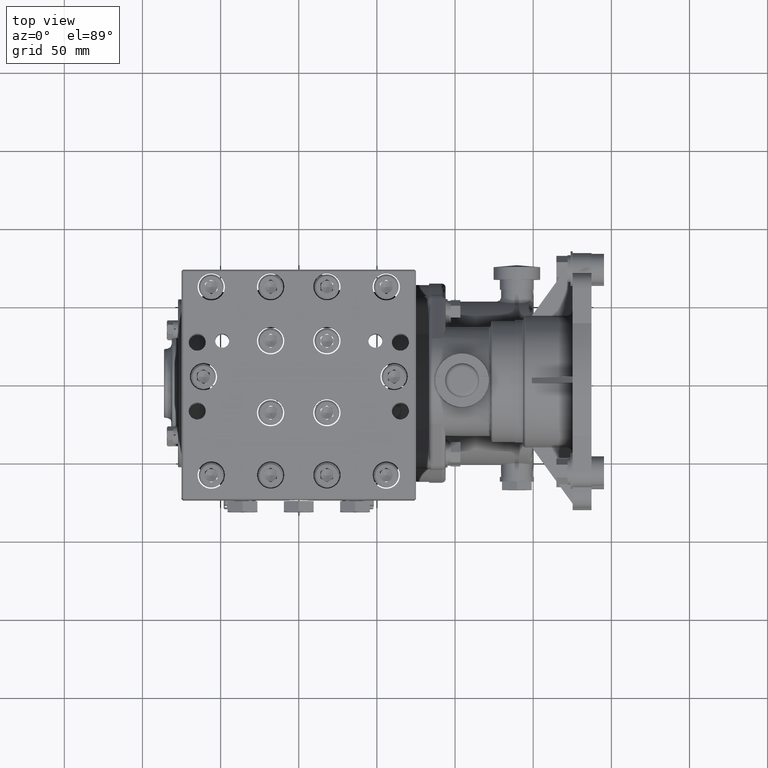
[diagram: clean part render]
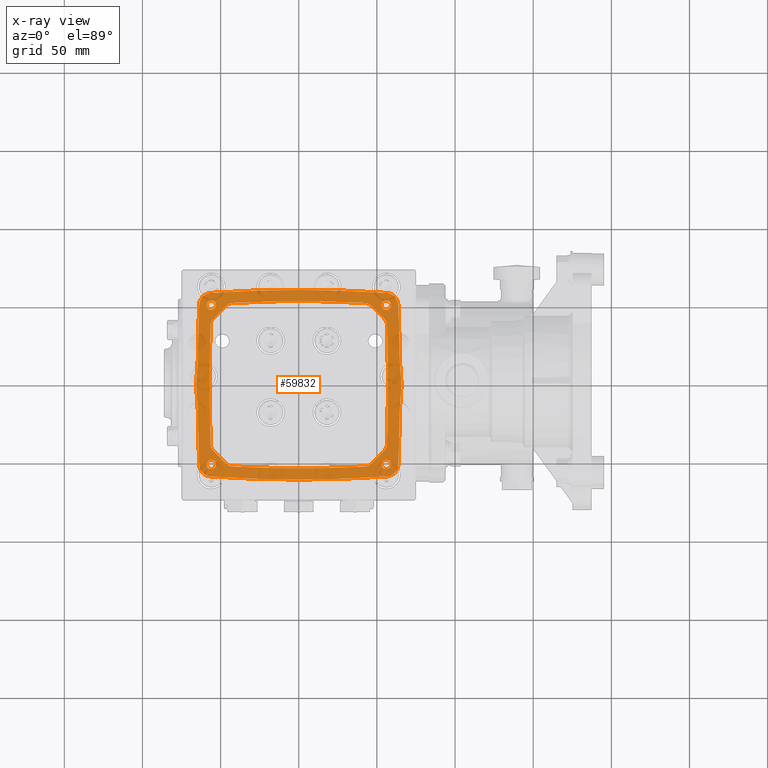
[diagram: x-ray — body ghosted, one internal face saturated and labeled with its STEP entity id]
A machine part, top view, then the same camera in x-ray: the body is ghosted and one INTERNAL B-rep face — a face not visible from any outside direction — is saturated and labeled: STEP entity #59832.
In plain terms, the highlighted planar face has unit normal (0, 0, 1).
Its self-contained STEP definition (entity closure, byte-faithful):
#20 = CARTESIAN_POINT ( 'NONE',  ( 7.003180397897975922E-33, -28.81889763779527414, -2.165354330708659791 ) ) ;
#52 = CARTESIAN_POINT ( 'NONE',  ( 2.226398268440926920, 2.309454876264962042, -2.165354330708661568 ) ) ;
#1538 = CARTESIAN_POINT ( 'NONE',  ( -1.665298053507368259, 2.061429151741544619, -2.165354330708661568 ) ) ;
#2400 = CARTESIAN_POINT ( 'NONE',  ( -2.506969314277190275, -2.036892271272478183, -2.165354330708661568 ) ) ;
#2517 = VERTEX_POINT ( 'NONE', #14618 ) ;
#2546 = CARTESIAN_POINT ( 'NONE',  ( 2.365679031425900192, -2.264536306372216146, -2.165354330708661124 ) ) ;
#2828 = ORIENTED_EDGE ( 'NONE', *, *, #20180, .T. ) ;
#2833 = CARTESIAN_POINT ( 'NONE',  ( -2.435460192130125101, -2.204361731283802861, -2.165354330708660680 ) ) ;
#2926 = CARTESIAN_POINT ( 'NONE',  ( -1.485093522122145515, 2.356044648000701791, -2.165354330708660235 ) ) ;
#3005 = CARTESIAN_POINT ( 'NONE',  ( 2.543265006702933650, -0.6403266331650486753, -2.165354330708661568 ) ) ;
#3247 = B_SPLINE_CURVE_WITH_KNOTS ( 'NONE', 3,
 ( #34395, #54094, #55453, #62314, #33494, #69631, #55902, #83357, #13786, #47710, #75127, #60953, #68262, #20653, #81983, #82438, #6060, #41708 ),
 .UNSPECIFIED., .F., .F.,
 ( 4, 2, 2, 2, 2, 2, 2, 2, 4 ),
 ( 0.000000000000000000, 0.004069019700830752914, 0.008138039401661505828, 0.01220705910249225874, 0.01627607880332301166, 0.02034509850415376631, 0.02441411820498451749, 0.02848313790581526866, 0.03255215760664602331 ),
 .UNSPECIFIED. ) ;
#3273 = CARTESIAN_POINT ( 'NONE',  ( -2.496376326611521090, -2.091466151007961294, -2.165354330708661124 ) ) ;
#3296 = CARTESIAN_POINT ( 'NONE',  ( 2.507699095000501810, 2.018276345781059522, -2.165354330708661568 ) ) ;
#3320 = CARTESIAN_POINT ( 'NONE',  ( -2.507699084655221622, -2.018276609678203659, -2.165354330708661568 ) ) ;
#3408 = CARTESIAN_POINT ( 'NONE',  ( -2.498518759619867691, 2.082038469294608340, -2.165354330708661124 ) ) ;
#3416 = CARTESIAN_POINT ( 'NONE',  ( 2.388121428136718016, -2.248513551110578490, -2.165354330708660680 ) ) ;
#3574 = VERTEX_POINT ( 'NONE', #77430 ) ;
#3811 = ORIENTED_EDGE ( 'NONE', *, *, #5827, .T. ) ;
#4125 = ORIENTED_EDGE ( 'NONE', *, *, #39024, .F. ) ;
#4173 = ORIENTED_EDGE ( 'NONE', *, *, #53844, .F. ) ;
#4328 = VERTEX_POINT ( 'NONE', #84939 ) ;
#4368 = VERTEX_POINT ( 'NONE', #52845 ) ;
#4645 = CARTESIAN_POINT ( 'NONE',  ( 2.543932861997212136, -0.5865920787521244906, -2.165354330708662012 ) ) ;
#4670 = AXIS2_PLACEMENT_3D ( 'NONE', #89900, #39159, #67067 ) ;
#5067 = DIRECTION ( 'NONE',  ( 4.382719174871368785E-18, 5.544652149419484913E-17, 1.000000000000000000 ) ) ;
#5099 = CARTESIAN_POINT ( 'NONE',  ( 2.543265006702933650, -0.6403266331650486753, -2.165354330708661568 ) ) ;
#5275 = DIRECTION ( 'NONE',  ( 4.382719174871368785E-18, 5.544652149419485530E-17, 1.000000000000000000 ) ) ;
#5320 = CARTESIAN_POINT ( 'NONE',  ( -2.189739141668258782, 1.613874688228873922, -2.165354330708661568 ) ) ;
#5427 = DIRECTION ( 'NONE',  ( -4.382719174871368785E-18, -5.544652149419485530E-17, -1.000000000000000000 ) ) ;
#5466 = CARTESIAN_POINT ( 'NONE',  ( 2.487175133690017859, 2.117236140601217453, -2.165354330708661568 ) ) ;
#5518 = EDGE_CURVE ( 'NONE', #38525, #85974, #3247, .T. ) ;
#5633 = CARTESIAN_POINT ( 'NONE',  ( 48.97637795275590378, -1.200613654401857639E-16, -2.165354330708661568 ) ) ;
#5827 = EDGE_CURVE ( 'NONE', #43337, #83105, #71125, .T. ) ;
#5926 = CARTESIAN_POINT ( 'NONE',  ( 2.498518759619869467, 2.082038469294609229, -2.165354330708661124 ) ) ;
#6017 = CARTESIAN_POINT ( 'NONE',  ( 2.586966824328970738, 0.05466901610737712192, -2.165354330708661568 ) ) ;
#6060 = CARTESIAN_POINT ( 'NONE',  ( -2.543932861997212136, -0.5865920787521244906, -2.165354330708662012 ) ) ;
#6181 = VERTEX_POINT ( 'NONE', #41368 ) ;
#6826 = CARTESIAN_POINT ( 'NONE',  ( 2.446878316306273504, 2.189458419480111218, -2.165354330708661124 ) ) ;
#6886 = CARTESIAN_POINT ( 'NONE',  ( -0.3714624763966134502, -2.389304942255948028, -2.165354330708661568 ) ) ;
#6887 = FACE_BOUND ( 'NONE', #86961, .T. ) ;
#7002 = CARTESIAN_POINT ( 'NONE',  ( 48.97637795275590378, -1.200613654401857639E-16, -2.165354330708661568 ) ) ;
#7326 = CARTESIAN_POINT ( 'NONE',  ( -2.222123512036451753, -1.500081608862754656, -2.165354330708661568 ) ) ;
#7602 = VERTEX_POINT ( 'NONE', #58462 ) ;
#7638 = ORIENTED_EDGE ( 'NONE', *, *, #61416, .F. ) ;
#7726 = CARTESIAN_POINT ( 'NONE',  ( 48.97637795275590378, -1.200613654401857639E-16, -2.165354330708661568 ) ) ;
#7770 = B_SPLINE_CURVE_WITH_KNOTS ( 'NONE', 3,
 ( #83734, #42085, #63146, #48095, #6886, #49455 ),
 .UNSPECIFIED., .F., .F.,
 ( 4, 2, 4 ),
 ( 0.000000000000000000, 0.02829432713783162912, 0.05658865427566325823 ),
 .UNSPECIFIED. ) ;
#7936 = EDGE_CURVE ( 'NONE', #83105, #40513, #90088, .T. ) ;
#8079 = CARTESIAN_POINT ( 'NONE',  ( -2.543265006702944753, 0.6403266331639345665, -2.165354330708661568 ) ) ;
#9132 = CARTESIAN_POINT ( 'NONE',  ( -2.204724409448818534, -2.007874015748031482, -2.165354330708661568 ) ) ;
#9259 = CARTESIAN_POINT ( 'NONE',  ( 2.543265006702944753, 0.6403266331639345665, -2.165354330708661568 ) ) ;
#9536 = CARTESIAN_POINT ( 'NONE',  ( 2.322834645669291209, -2.007874015748031482, -2.165354330708661568 ) ) ;
#9693 = CARTESIAN_POINT ( 'NONE',  ( -2.315981751020903978, -2.289185744994255423, -2.165354330708661124 ) ) ;
#9835 = CARTESIAN_POINT ( 'NONE',  ( -2.299159994477765423, 2.295707594504620808, -2.165354330708661568 ) ) ;
#10266 = CARTESIAN_POINT ( 'NONE',  ( 2.213359582976154094, 1.559097908158796342, -2.165354330708661124 ) ) ;
#10291 = CARTESIAN_POINT ( 'NONE',  ( 2.416204707833614851, -2.224306327292284724, -2.165354330708661568 ) ) ;
#10337 = CARTESIAN_POINT ( 'NONE',  ( -2.543265006702933650, -0.6403266331650486753, -2.165354330708661568 ) ) ;
#10390 = CARTESIAN_POINT ( 'NONE',  ( 2.219825723293632702, -1.530001510944977605, -2.165354330708661124 ) ) ;
#10657 = AXIS2_PLACEMENT_3D ( 'NONE', #76101, #81596, #19795 ) ;
#10695 = CARTESIAN_POINT ( 'NONE',  ( -1.819865019293845032, -1.992649318428517002, -2.165354330708661568 ) ) ;
#10723 = CARTESIAN_POINT ( 'NONE',  ( 2.446962882100046865, -2.190037674934414813, -2.165354330708661124 ) ) ;
#10753 = B_SPLINE_CURVE_WITH_KNOTS ( 'NONE', 3,
 ( #35839, #41795, #57348, #20725, #64223, #1538 ),
 .UNSPECIFIED., .F., .F.,
 ( 4, 2, 4 ),
 ( -1.000000000000000000, -0.5000000000000000000, -0.000000000000000000 ),
 .UNSPECIFIED. ) ;
#10795 = B_SPLINE_CURVE_WITH_KNOTS ( 'NONE', 3,
 ( #23846, #2400, #29816, #3273, #71502, #59096, #51788, #65530, #2833, #52243, #38483, #16544, #30727, #86546, #16987, #66406, #9693, #24293, #86111, #80120, #79662, #52695 ),
 .UNSPECIFIED., .F., .F.,
 ( 4, 2, 2, 2, 2, 2, 2, 2, 2, 2, 4 ),
 ( 2.017058999513409408E-16, 0.001417373402076399069, 0.002834746804152596476, 0.004252120206228794316, 0.005669493608304991723, 0.006378180309343096932, 0.007086867010381203875, 0.008504240412457409956, 0.009212927113495514297, 0.009921613814533618639, 0.01133898721660983079 ),
 .UNSPECIFIED. ) ;
#11018 = EDGE_CURVE ( 'NONE', #72633, #32371, #61317, .T. ) ;
#11732 = CARTESIAN_POINT ( 'NONE',  ( 2.163204215270329467, -1.650379664719830330, -2.165354330708661124 ) ) ;
#11940 = CARTESIAN_POINT ( 'NONE',  ( 2.555849678708232542, -0.4261577759929520703, -2.165354330708661568 ) ) ;
#12111 = CARTESIAN_POINT ( 'NONE',  ( -2.221682597448173535, -1.515130234257967556, -2.165354330708661568 ) ) ;
#12153 = CARTESIAN_POINT ( 'NONE',  ( -2.208785680751318203, 1.573256141254134599, -2.165354330708661568 ) ) ;
#12301 = CARTESIAN_POINT ( 'NONE',  ( 2.467526665887781689, 2.159020891313297330, -2.165354330708661124 ) ) ;
#12759 = CARTESIAN_POINT ( 'NONE',  ( 2.244982747217354024, 2.308120096729282977, -2.165354330708661568 ) ) ;
#13018 = DIRECTION ( 'NONE',  ( 1.000000000000000000, 0.000000000000000000, 0.000000000000000000 ) ) ;
#13284 = CARTESIAN_POINT ( 'NONE',  ( 7.003180397897975922E-33, -28.81889763779527414, -2.165354330708659791 ) ) ;
#13786 = CARTESIAN_POINT ( 'NONE',  ( -2.586966824328970738, 0.05466901610737712192, -2.165354330708661568 ) ) ;
#13809 = EDGE_CURVE ( 'NONE', #81619, #86253, #56734, .T. ) ;
#14062 = CIRCLE ( 'NONE', #76928, 0.1181102362204725503 ) ;
#14069 = B_SPLINE_CURVE_WITH_KNOTS ( 'NONE', 3,
 ( #26949, #76389, #39803, #54440, #32930, #47605 ),
 .UNSPECIFIED., .F., .F.,
 ( 4, 2, 4 ),
 ( 0.000000000000000000, 0.02829432713783162912, 0.05658865427566325823 ),
 .UNSPECIFIED. ) ;
#14110 = CARTESIAN_POINT ( 'NONE',  ( 2.429114812346702124, 2.210929334946595937, -2.165354330708661568 ) ) ;
#14618 = CARTESIAN_POINT ( 'NONE',  ( -2.086614173228346303, 2.007874015748031482, -2.165354330708661568 ) ) ;
#14775 = EDGE_LOOP ( 'NONE', ( #54923, #71696, #30751, #31799, #76778, #16504, #87521, #68873, #57209, #32759, #4125, #52653, #7638, #56935, #47418, #56995 ) ) ;
#15345 = CARTESIAN_POINT ( 'NONE',  ( -2.504556795817798776, 2.055155352968323967, -2.165354330708661124 ) ) ;
#15405 = VERTEX_POINT ( 'NONE', #87718 ) ;
#15808 = CARTESIAN_POINT ( 'NONE',  ( -2.435291354646365036, 2.203911179097556072, -2.165354330708661124 ) ) ;
#16476 = DIRECTION ( 'NONE',  ( -1.000000000000000000, 0.000000000000000000, 0.000000000000000000 ) ) ;
#16504 = ORIENTED_EDGE ( 'NONE', *, *, #52091, .T. ) ;
#16544 = CARTESIAN_POINT ( 'NONE',  ( -2.395374267148705716, -2.242822968506205328, -2.165354330708661568 ) ) ;
#16921 = CIRCLE ( 'NONE', #68041, 30.92519685039370358 ) ;
#16987 = CARTESIAN_POINT ( 'NONE',  ( -2.349811279969611810, -2.273828208019545105, -2.165354330708661124 ) ) ;
#17168 = ORIENTED_EDGE ( 'NONE', *, *, #85034, .F. ) ;
#17172 = AXIS2_PLACEMENT_3D ( 'NONE', #61533, #5275, #53772 ) ;
#17242 = CARTESIAN_POINT ( 'NONE',  ( 2.208677786958054057, -1.573556101159421017, -2.165354330708661124 ) ) ;
#17379 = ORIENTED_EDGE ( 'NONE', *, *, #73516, .F. ) ;
#17585 = CARTESIAN_POINT ( 'NONE',  ( 2.226399550609211797, -2.309455044778845334, -2.165354330708661568 ) ) ;
#17612 = VERTEX_POINT ( 'NONE', #88843 ) ;
#17648 = CIRCLE ( 'NONE', #68803, 0.1181102362204725503 ) ;
#18018 = CARTESIAN_POINT ( 'NONE',  ( 2.244982819985745781, -2.308120272099379200, -2.165354330708662456 ) ) ;
#18350 = CARTESIAN_POINT ( 'NONE',  ( 2.561200214332288727, 0.3739337529956902051, -2.165354330708661568 ) ) ;
#18800 = CARTESIAN_POINT ( 'NONE',  ( 2.587034883247977035, -0.05213171969899274560, -2.165354330708661124 ) ) ;
#18980 = CARTESIAN_POINT ( 'NONE',  ( -2.219825723293632702, -1.530001510944977605, -2.165354330708661124 ) ) ;
#19211 = PLANE ( 'NONE',  #35415 ) ;
#19602 = CARTESIAN_POINT ( 'NONE',  ( 2.490438297128288792, 2.108490976394182148, -2.165354330708661568 ) ) ;
#19795 = DIRECTION ( 'NONE',  ( 1.000000000000000000, 0.000000000000000000, 0.000000000000000000 ) ) ;
#19861 = VERTEX_POINT ( 'NONE', #77307 ) ;
#19961 = EDGE_CURVE ( 'NONE', #86253, #43929, #24158, .T. ) ;
#20046 = CARTESIAN_POINT ( 'NONE',  ( 1.819865019293845032, -1.992649318428517002, -2.165354330708661568 ) ) ;
#20180 = EDGE_CURVE ( 'NONE', #6181, #17612, #17648, .T. ) ;
#20653 = CARTESIAN_POINT ( 'NONE',  ( -2.561316277943267661, -0.3727956487488476300, -2.165354330708661124 ) ) ;
#20725 = CARTESIAN_POINT ( 'NONE',  ( -1.722511925836797575, 2.053050820824780853, -2.165354330708661124 ) ) ;
#21523 = B_SPLINE_CURVE_WITH_KNOTS ( 'NONE', 3,
 ( #58791, #79803, #50165, #9835, #86688, #44173, #51483, #79359, #37740, #45061, #15808, #78030, #57445, #72969, #78481, #38182, #50600, #43275, #3408, #15345, #23552, #85351 ),
 .UNSPECIFIED., .F., .F.,
 ( 4, 2, 2, 2, 2, 2, 2, 2, 2, 2, 4 ),
 ( 0.000000000000000000, 0.001417687121495787980, 0.002835374242991575960, 0.004253061364487364590, 0.005670748485983151919, 0.006379592046731046885, 0.007088435607478940984, 0.008506122728974729180, 0.009214966289722631085, 0.009923809850470532989, 0.01134149697196632986 ),
 .UNSPECIFIED. ) ;
#21700 = CARTESIAN_POINT ( 'NONE',  ( -2.226398268440926920, 2.309454876264962042, -2.165354330708661568 ) ) ;
#22170 = CARTESIAN_POINT ( 'NONE',  ( -2.219270343645323162, -1.594488188976376897, -2.165354330708661568 ) ) ;
#22710 = CARTESIAN_POINT ( 'NONE',  ( -2.322834645669291209, 2.007874015748031482, -2.165354330708661568 ) ) ;
#23004 = EDGE_CURVE ( 'NONE', #2517, #76426, #50180, .T. ) ;
#23025 = CIRCLE ( 'NONE', #68287, 0.1181102362204725503 ) ;
#23094 = VERTEX_POINT ( 'NONE', #63733 ) ;
#23552 = CARTESIAN_POINT ( 'NONE',  ( -2.506969276822858195, 2.036893229126701232, -2.165354330708661124 ) ) ;
#23709 = EDGE_LOOP ( 'NONE', ( #52547, #17168 ) ) ;
#23846 = CARTESIAN_POINT ( 'NONE',  ( -2.507699084655221622, -2.018276609678203659, -2.165354330708661568 ) ) ;
#23992 = CARTESIAN_POINT ( 'NONE',  ( 2.467332750831504384, -2.159359728066983397, -2.165354330708661568 ) ) ;
#24158 = LINE ( 'NONE', #51642, #65939 ) ;
#24293 = CARTESIAN_POINT ( 'NONE',  ( -2.298606430290601743, -2.295446092816230355, -2.165354330708660680 ) ) ;
#24433 = CARTESIAN_POINT ( 'NONE',  ( 2.263153763336886559, -2.305104183887489278, -2.165354330708661124 ) ) ;
#24851 = CARTESIAN_POINT ( 'NONE',  ( -1.665298053507381582, -2.061429151741539734, -2.165354330708661568 ) ) ;
#24884 = CIRCLE ( 'NONE', #29281, 0.1181102362204725503 ) ;
#25105 = LINE ( 'NONE', #53053, #88276 ) ;
#25300 = ORIENTED_EDGE ( 'NONE', *, *, #50734, .T. ) ;
#25619 = CARTESIAN_POINT ( 'NONE',  ( 1.775351250857132968, -2.029543694701740897, -2.165354330708661124 ) ) ;
#25820 = ORIENTED_EDGE ( 'NONE', *, *, #84267, .T. ) ;
#25887 = CARTESIAN_POINT ( 'NONE',  ( 2.204724409448818534, 2.007874015748031482, -2.165354330708661568 ) ) ;
#26860 = VERTEX_POINT ( 'NONE', #3296 ) ;
#26949 = CARTESIAN_POINT ( 'NONE',  ( 2.226399550609211797, -2.309455044778845334, -2.165354330708661568 ) ) ;
#27475 = CARTESIAN_POINT ( 'NONE',  ( -2.507699095000501810, 2.018276345781059522, -2.165354330708661568 ) ) ;
#27901 = DIRECTION ( 'NONE',  ( 4.382719174871368785E-18, 5.544652149419485530E-17, 1.000000000000000000 ) ) ;
#28273 = CARTESIAN_POINT ( 'NONE',  ( 2.435291354646367257, 2.203911179097558293, -2.165354330708662012 ) ) ;
#28395 = CARTESIAN_POINT ( 'NONE',  ( 2.152598785039741891, 1.660952057778921409, -2.165354330708661568 ) ) ;
#29281 = AXIS2_PLACEMENT_3D ( 'NONE', #33296, #33746, #82699 ) ;
#29816 = CARTESIAN_POINT ( 'NONE',  ( -2.504511574974339627, -2.055465809160683666, -2.165354330708661124 ) ) ;
#30167 = DIRECTION ( 'NONE',  ( -1.000000000000000000, 0.000000000000000000, 0.000000000000000000 ) ) ;
#30480 = ORIENTED_EDGE ( 'NONE', *, *, #44849, .T. ) ;
#30581 = EDGE_CURVE ( 'NONE', #75148, #3574, #75185, .T. ) ;
#30727 = CARTESIAN_POINT ( 'NONE',  ( -2.388121428136719349, -2.248513551110580266, -2.165354330708661568 ) ) ;
#30743 = CARTESIAN_POINT ( 'NONE',  ( 2.547149771677712948, 0.5335505165541405415, -2.165354330708661568 ) ) ;
#30751 = ORIENTED_EDGE ( 'NONE', *, *, #56959, .T. ) ;
#30816 = CARTESIAN_POINT ( 'NONE',  ( -1.855891039598182246, 2.336065548150337623, -2.165354330708661124 ) ) ;
#30847 = CARTESIAN_POINT ( 'NONE',  ( 2.189739141668258782, 1.613874688228873922, -2.165354330708661568 ) ) ;
#31098 = DIRECTION ( 'NONE',  ( -4.382719174871368785E-18, -5.544652149419485530E-17, -1.000000000000000000 ) ) ;
#31293 = CARTESIAN_POINT ( 'NONE',  ( -2.152598785039734341, -1.660952057778923185, -2.165354330708661568 ) ) ;
#31491 = VERTEX_POINT ( 'NONE', #78491 ) ;
#31509 = EDGE_LOOP ( 'NONE', ( #67632, #89366 ) ) ;
#31743 = CARTESIAN_POINT ( 'NONE',  ( -5.806167078742581744E-34, 2.389304932947936333, -2.165354330708661568 ) ) ;
#31799 = ORIENTED_EDGE ( 'NONE', *, *, #50845, .T. ) ;
#31918 = B_SPLINE_CURVE_WITH_KNOTS ( 'NONE', 3,
 ( #66848, #86991, #80111, #25619, #53582, #81457 ),
 .UNSPECIFIED., .F., .F.,
 ( 4, 2, 4 ),
 ( 0.000000000000000000, 0.5000000000000000000, 1.000000000000000000 ),
 .UNSPECIFIED. ) ;
#32035 = CARTESIAN_POINT ( 'NONE',  ( 1.819865019293829489, 1.992649318428512339, -2.165354330708661568 ) ) ;
#32267 = CARTESIAN_POINT ( 'NONE',  ( -2.152598785039734341, -1.660952057778923185, -2.165354330708661568 ) ) ;
#32311 = CARTESIAN_POINT ( 'NONE',  ( 2.222123512036451753, -1.500081608862754656, -2.165354330708661568 ) ) ;
#32371 = VERTEX_POINT ( 'NONE', #37542 ) ;
#32476 = CARTESIAN_POINT ( 'NONE',  ( 1.775335066388156413, 2.029552431919218858, -2.165354330708661568 ) ) ;
#32759 = ORIENTED_EDGE ( 'NONE', *, *, #48030, .T. ) ;
#32857 = DIRECTION ( 'NONE',  ( 1.000000000000000000, 1.216804434989171568E-13, -5.302127228476524804E-18 ) ) ;
#32930 = CARTESIAN_POINT ( 'NONE',  ( 0.3714624763966134502, -2.389304942255947584, -2.165354330708661568 ) ) ;
#33194 = VERTEX_POINT ( 'NONE', #79439 ) ;
#33213 = CARTESIAN_POINT ( 'NONE',  ( -2.172818252056210930, 1.638785034891005798, -2.165354330708661124 ) ) ;
#33296 = CARTESIAN_POINT ( 'NONE',  ( 2.204724409448818534, 2.007874015748031482, -2.165354330708661568 ) ) ;
#33356 = EDGE_CURVE ( 'NONE', #23094, #88663, #54312, .T. ) ;
#33360 = CARTESIAN_POINT ( 'NONE',  ( 2.409857958945319734, 2.230889108303422130, -2.165354330708661568 ) ) ;
#33386 = EDGE_CURVE ( 'NONE', #76890, #34739, #90354, .T. ) ;
#33494 = CARTESIAN_POINT ( 'NONE',  ( -2.561200214332288727, 0.3739337529956902051, -2.165354330708661568 ) ) ;
#33746 = DIRECTION ( 'NONE',  ( -4.382719174871368785E-18, -5.544652149419485530E-17, -1.000000000000000000 ) ) ;
#33808 = CARTESIAN_POINT ( 'NONE',  ( 2.504556795817800108, 2.055155352968324856, -2.165354330708661568 ) ) ;
#34251 = CARTESIAN_POINT ( 'NONE',  ( 2.299159994477764979, 2.295707594504620808, -2.165354330708661568 ) ) ;
#34266 = AXIS2_PLACEMENT_3D ( 'NONE', #7726, #35604, #68567 ) ;
#34390 = CARTESIAN_POINT ( 'NONE',  ( -2.226399550609211797, -2.309455044778845334, -2.165354330708661124 ) ) ;
#34395 = CARTESIAN_POINT ( 'NONE',  ( -2.543265006702944753, 0.6403266331639345665, -2.165354330708661568 ) ) ;
#34739 = VERTEX_POINT ( 'NONE', #31293 ) ;
#34772 = FACE_BOUND ( 'NONE', #23709, .T. ) ;
#35415 = AXIS2_PLACEMENT_3D ( 'NONE', #20, #5067, #88781 ) ;
#35604 = DIRECTION ( 'NONE',  ( 4.382719174871368785E-18, 5.544652149419485530E-17, 1.000000000000000000 ) ) ;
#35839 = CARTESIAN_POINT ( 'NONE',  ( -1.819865019293829489, 1.992649318428512339, -2.165354330708661568 ) ) ;
#36381 = EDGE_CURVE ( 'NONE', #34739, #79446, #64575, .T. ) ;
#37162 = CARTESIAN_POINT ( 'NONE',  ( 2.543929612325298795, 0.5868535420895685251, -2.165354330708661124 ) ) ;
#37309 = CARTESIAN_POINT ( 'NONE',  ( 2.490721398707845147, -2.108940945489631069, -2.165354330708661568 ) ) ;
#37542 = CARTESIAN_POINT ( 'NONE',  ( 2.222123512036451753, -1.500081608862754656, -2.165354330708661568 ) ) ;
#37693 = VERTEX_POINT ( 'NONE', #69757 ) ;
#37720 = CARTESIAN_POINT ( 'NONE',  ( 2.221684838214001978, 1.515053755850700457, -2.165354330708661124 ) ) ;
#37740 = CARTESIAN_POINT ( 'NONE',  ( -2.409857958945321066, 2.230889108303422130, -2.165354330708662456 ) ) ;
#38161 = CARTESIAN_POINT ( 'NONE',  ( 2.152598785039741891, 1.660952057778921409, -2.165354330708661568 ) ) ;
#38182 = CARTESIAN_POINT ( 'NONE',  ( -2.487175133690012530, 2.117236140601213457, -2.165354330708661124 ) ) ;
#38191 = CARTESIAN_POINT ( 'NONE',  ( 2.496376326611518426, -2.091466151007962182, -2.165354330708661568 ) ) ;
#38284 = CARTESIAN_POINT ( 'NONE',  ( 2.213280055852036465, -1.559389366902613316, -2.165354330708661568 ) ) ;
#38483 = CARTESIAN_POINT ( 'NONE',  ( -2.409413171279607635, -2.230725825977086796, -2.165354330708661124 ) ) ;
#38525 = VERTEX_POINT ( 'NONE', #8079 ) ;
#38625 = CARTESIAN_POINT ( 'NONE',  ( 2.504511574974337851, -2.055465809160683222, -2.165354330708661568 ) ) ;
#38686 = CARTESIAN_POINT ( 'NONE',  ( -2.196755736665824799, -1.601098465890254952, -2.165354330708661568 ) ) ;
#38751 = DIRECTION ( 'NONE',  ( -4.382719174871368785E-18, -5.544652149419485530E-17, -1.000000000000000000 ) ) ;
#39024 = EDGE_CURVE ( 'NONE', #4368, #7602, #10753, .T. ) ;
#39155 = VERTEX_POINT ( 'NONE', #3320 ) ;
#39159 = DIRECTION ( 'NONE',  ( -4.382719174871368785E-18, -5.544652149419485530E-17, -1.000000000000000000 ) ) ;
#39189 = CARTESIAN_POINT ( 'NONE',  ( 2.152598785039734341, -1.660952057778923185, -2.165354330708661568 ) ) ;
#39237 = CARTESIAN_POINT ( 'NONE',  ( 2.507699084655221622, -2.018276609678203659, -2.165354330708661568 ) ) ;
#39407 = CARTESIAN_POINT ( 'NONE',  ( 2.577078491238841806, 0.2144346540354758746, -2.165354330708661568 ) ) ;
#39594 = CIRCLE ( 'NONE', #64461, 51.22047244094488150 ) ;
#39638 = CARTESIAN_POINT ( 'NONE',  ( 2.189577504191285051, -1.614138010126627165, -2.165354330708661124 ) ) ;
#39727 = CARTESIAN_POINT ( 'NONE',  ( -48.97637795275590378, -1.200613654401857639E-16, -2.165354330708661124 ) ) ;
#39803 = CARTESIAN_POINT ( 'NONE',  ( 1.485094011898409727, -2.356032690953609343, -2.165354330708661568 ) ) ;
#40083 = CARTESIAN_POINT ( 'NONE',  ( -2.196897490499831740, 1.600820636837663624, -2.165354330708661124 ) ) ;
#40233 = CARTESIAN_POINT ( 'NONE',  ( 2.476258197580706089, 2.142836032510806454, -2.165354330708661568 ) ) ;
#40513 = VERTEX_POINT ( 'NONE', #70836 ) ;
#40680 = CARTESIAN_POINT ( 'NONE',  ( 2.395949701857929881, 2.242892435977619225, -2.165354330708661568 ) ) ;
#40705 = DIRECTION ( 'NONE',  ( 1.000000000000000000, 0.000000000000000000, -5.302127228476524804E-18 ) ) ;
#40844 = B_SPLINE_CURVE_WITH_KNOTS ( 'NONE', 3,
 ( #50991, #51434, #63815, #2926, #30816, #21700 ),
 .UNSPECIFIED., .F., .F.,
 ( 4, 2, 4 ),
 ( 4.077884107204853351E-25, 0.02830452656250993099, 0.05660905312501987585 ),
 .UNSPECIFIED. ) ;
#41368 = CARTESIAN_POINT ( 'NONE',  ( -2.322834645669291209, -2.007874015748031482, -2.165354330708661568 ) ) ;
#41642 = DIRECTION ( 'NONE',  ( -1.000000000000000000, 0.000000000000000000, 0.000000000000000000 ) ) ;
#41708 = CARTESIAN_POINT ( 'NONE',  ( -2.543265006702933650, -0.6403266331650486753, -2.165354330708661568 ) ) ;
#41795 = CARTESIAN_POINT ( 'NONE',  ( -1.799391997228569018, 2.013058564604782052, -2.165354330708661124 ) ) ;
#41902 = AXIS2_PLACEMENT_3D ( 'NONE', #75472, #48500, #40705 ) ;
#42085 = CARTESIAN_POINT ( 'NONE',  ( -1.855892260071492439, -2.336067316222200763, -2.165354330708661124 ) ) ;
#42191 = CIRCLE ( 'NONE', #53876, 30.92519685039370358 ) ;
#42731 = DIRECTION ( 'NONE',  ( 4.382719174871368785E-18, 5.544652149419485530E-17, 1.000000000000000000 ) ) ;
#42784 = DIRECTION ( 'NONE',  ( -0.7082089982551051932, 0.7060028433303228157, -3.604152067120835312E-17 ) ) ;
#43275 = CARTESIAN_POINT ( 'NONE',  ( -2.496100249859891651, 2.090913945822136633, -2.165354330708661568 ) ) ;
#43337 = VERTEX_POINT ( 'NONE', #3005 ) ;
#43773 = VERTEX_POINT ( 'NONE', #34390 ) ;
#43929 = VERTEX_POINT ( 'NONE', #67211 ) ;
#44173 = CARTESIAN_POINT ( 'NONE',  ( -2.349825550757513426, 2.273812584395070946, -2.165354330708661568 ) ) ;
#44263 = VERTEX_POINT ( 'NONE', #81009 ) ;
#44849 = EDGE_CURVE ( 'NONE', #26860, #31491, #58992, .T. ) ;
#45061 = CARTESIAN_POINT ( 'NONE',  ( -2.429114812346701235, 2.210929334946594604, -2.165354330708661124 ) ) ;
#45448 = B_SPLINE_CURVE_WITH_KNOTS ( 'NONE', 3,
 ( #46978, #62030, #61584, #55177, #12153, #40083, #5320, #33213, #89033, #68442 ),
 .UNSPECIFIED., .F., .F.,
 ( 4, 2, 2, 2, 4 ),
 ( -1.000000000000000000, -0.7500000000000000000, -0.5000000000000000000, -0.2500000000000000000, -0.000000000000000000 ),
 .UNSPECIFIED. ) ;
#45790 = CARTESIAN_POINT ( 'NONE',  ( 1.799391997228569018, 2.013058564604782052, -2.165354330708661124 ) ) ;
#46283 = ORIENTED_EDGE ( 'NONE', *, *, #7936, .T. ) ;
#46939 = CARTESIAN_POINT ( 'NONE',  ( -2.213280055852036465, -1.559389366902613316, -2.165354330708661568 ) ) ;
#46978 = CARTESIAN_POINT ( 'NONE',  ( -2.222123512036461079, 1.500081608862758653, -2.165354330708661568 ) ) ;
#47295 = CARTESIAN_POINT ( 'NONE',  ( 2.222123512036461079, 1.500081608862758653, -2.165354330708661568 ) ) ;
#47305 = CARTESIAN_POINT ( 'NONE',  ( -1.694170780839115098, -2.059872118457770185, -2.165354330708661124 ) ) ;
#47418 = ORIENTED_EDGE ( 'NONE', *, *, #36381, .F. ) ;
#47605 = CARTESIAN_POINT ( 'NONE',  ( 5.806167078742583454E-34, -2.389304932947937665, -2.165354330708661568 ) ) ;
#47665 = CARTESIAN_POINT ( 'NONE',  ( 2.561316277943267661, -0.3727956487488476300, -2.165354330708661124 ) ) ;
#47710 = CARTESIAN_POINT ( 'NONE',  ( -2.587034883247977035, -0.05213171969899274560, -2.165354330708661124 ) ) ;
#47712 = VECTOR ( 'NONE', #79061, 39.37007874015748143 ) ;
#47834 = DIRECTION ( 'NONE',  ( 4.382719174871368785E-18, 5.544652149419485530E-17, 1.000000000000000000 ) ) ;
#47952 = ORIENTED_EDGE ( 'NONE', *, *, #72636, .F. ) ;
#48030 = EDGE_CURVE ( 'NONE', #37693, #7602, #16921, .T. ) ;
#48038 = CARTESIAN_POINT ( 'NONE',  ( 2.263466885730226252, 2.305047135850796458, -2.165354330708661124 ) ) ;
#48095 = CARTESIAN_POINT ( 'NONE',  ( -0.7429160555722728043, -2.382680048062203237, -2.165354330708661124 ) ) ;
#48500 = DIRECTION ( 'NONE',  ( -4.382719174871368785E-18, -5.544652149419485530E-17, -1.000000000000000000 ) ) ;
#48837 = CARTESIAN_POINT ( 'NONE',  ( -5.806167078742581744E-34, 2.389304932947936333, -2.165354330708661568 ) ) ;
#49287 = AXIS2_PLACEMENT_3D ( 'NONE', #71441, #31098, #16476 ) ;
#49455 = CARTESIAN_POINT ( 'NONE',  ( 5.806167078742583454E-34, -2.389304932947937665, -2.165354330708661568 ) ) ;
#49847 = LINE ( 'NONE', #77718, #47712 ) ;
#50165 = CARTESIAN_POINT ( 'NONE',  ( -2.263466885730227585, 2.305047135850797790, -2.165354330708661124 ) ) ;
#50180 = CIRCLE ( 'NONE', #10657, 0.1181102362204725503 ) ;
#50600 = CARTESIAN_POINT ( 'NONE',  ( -2.490438297128287015, 2.108490976394181704, -2.165354330708661568 ) ) ;
#50734 = EDGE_CURVE ( 'NONE', #3574, #26860, #82092, .T. ) ;
#50845 = EDGE_CURVE ( 'NONE', #62586, #72633, #49847, .T. ) ;
#50991 = CARTESIAN_POINT ( 'NONE',  ( -5.806167078742581744E-34, 2.389304932947936333, -2.165354330708661568 ) ) ;
#51025 = CARTESIAN_POINT ( 'NONE',  ( 2.163258281448712683, 1.650325766963999241, -2.165354330708661568 ) ) ;
#51434 = CARTESIAN_POINT ( 'NONE',  ( -0.3714619736455344046, 2.389304923639931300, -2.165354330708661568 ) ) ;
#51483 = CARTESIAN_POINT ( 'NONE',  ( -2.366018722821677134, 2.264324669307098858, -2.165354330708661568 ) ) ;
#51642 = CARTESIAN_POINT ( 'NONE',  ( 2.219270343645315169, 1.594488188976378007, -2.165354330708661568 ) ) ;
#51788 = CARTESIAN_POINT ( 'NONE',  ( -2.467332750831505273, -2.159359728066982509, -2.165354330708661124 ) ) ;
#51945 = CARTESIAN_POINT ( 'NONE',  ( 2.395374267148704828, -2.242822968506204440, -2.165354330708660680 ) ) ;
#52091 = EDGE_CURVE ( 'NONE', #32371, #81619, #84340, .T. ) ;
#52107 = DIRECTION ( 'NONE',  ( -0.7082089982551068585, 0.7060028433303210393, -3.604152067120824219E-17 ) ) ;
#52243 = CARTESIAN_POINT ( 'NONE',  ( -2.416204707833609078, -2.224306327292279839, -2.165354330708661124 ) ) ;
#52389 = CARTESIAN_POINT ( 'NONE',  ( 2.409413171279607635, -2.230725825977087240, -2.165354330708661124 ) ) ;
#52547 = ORIENTED_EDGE ( 'NONE', *, *, #33356, .F. ) ;
#52653 = ORIENTED_EDGE ( 'NONE', *, *, #62506, .F. ) ;
#52695 = CARTESIAN_POINT ( 'NONE',  ( -2.226399550609211797, -2.309455044778845334, -2.165354330708661124 ) ) ;
#52767 = CARTESIAN_POINT ( 'NONE',  ( 2.322834645669291209, 2.007874015748031482, -2.165354330708661568 ) ) ;
#52832 = CARTESIAN_POINT ( 'NONE',  ( 2.506969314277189831, -2.036892271272477295, -2.165354330708661124 ) ) ;
#52845 = CARTESIAN_POINT ( 'NONE',  ( -1.819865019293829489, 1.992649318428512339, -2.165354330708661568 ) ) ;
#52895 = ORIENTED_EDGE ( 'NONE', *, *, #5518, .F. ) ;
#53053 = CARTESIAN_POINT ( 'NONE',  ( -2.219270343645315169, 1.594488188976378007, -2.165354330708661568 ) ) ;
#53282 = CIRCLE ( 'NONE', #34266, 51.52362204724409622 ) ;
#53327 = CARTESIAN_POINT ( 'NONE',  ( -2.208677786958054057, -1.573556101159421017, -2.165354330708661124 ) ) ;
#53582 = CARTESIAN_POINT ( 'NONE',  ( 1.799393356314523462, -2.013057209752563192, -2.165354330708661124 ) ) ;
#53606 = CARTESIAN_POINT ( 'NONE',  ( 2.584798791261073259, -0.1056861792405178191, -2.165354330708661568 ) ) ;
#53772 = DIRECTION ( 'NONE',  ( -1.000000000000000000, 0.000000000000000000, 5.333507996854134523E-18 ) ) ;
#53840 = DIRECTION ( 'NONE',  ( -1.000000000000000000, 0.000000000000000000, 0.000000000000000000 ) ) ;
#53844 = EDGE_CURVE ( 'NONE', #56303, #38525, #86031, .T. ) ;
#53876 = AXIS2_PLACEMENT_3D ( 'NONE', #65412, #80008, #30167 ) ;
#54094 = CARTESIAN_POINT ( 'NONE',  ( -2.543929612325298795, 0.5868535420895685251, -2.165354330708661124 ) ) ;
#54160 = CARTESIAN_POINT ( 'NONE',  ( 1.485093522122145515, 2.356044648000701791, -2.165354330708661124 ) ) ;
#54312 = CIRCLE ( 'NONE', #4670, 0.1181102362204725503 ) ;
#54404 = EDGE_CURVE ( 'NONE', #44263, #84442, #42191, .T. ) ;
#54410 = CARTESIAN_POINT ( 'NONE',  ( 2.226398268440926920, 2.309454876264962042, -2.165354330708661568 ) ) ;
#54440 = CARTESIAN_POINT ( 'NONE',  ( 0.7429160555722728043, -2.382680048062204126, -2.165354330708661124 ) ) ;
#54491 = CARTESIAN_POINT ( 'NONE',  ( 2.547179575223919912, -0.5330576677038848521, -2.165354330708661124 ) ) ;
#54923 = ORIENTED_EDGE ( 'NONE', *, *, #55043, .F. ) ;
#54949 = CARTESIAN_POINT ( 'NONE',  ( 2.584672947388187314, 0.1079688259028910441, -2.165354330708661124 ) ) ;
#55043 = EDGE_CURVE ( 'NONE', #44263, #76890, #71523, .T. ) ;
#55177 = CARTESIAN_POINT ( 'NONE',  ( -2.213359582976154094, 1.559097908158796342, -2.165354330708661124 ) ) ;
#55453 = CARTESIAN_POINT ( 'NONE',  ( -2.547149771677712948, 0.5335505165541405415, -2.165354330708661568 ) ) ;
#55794 = CARTESIAN_POINT ( 'NONE',  ( 1.665298053507381582, -2.061429151741539734, -2.165354330708661568 ) ) ;
#55856 = CARTESIAN_POINT ( 'NONE',  ( 1.855891039598183134, 2.336065548150336291, -2.165354330708661568 ) ) ;
#55902 = CARTESIAN_POINT ( 'NONE',  ( -2.577078491238841806, 0.2144346540354758746, -2.165354330708661568 ) ) ;
#56303 = VERTEX_POINT ( 'NONE', #27475 ) ;
#56734 = B_SPLINE_CURVE_WITH_KNOTS ( 'NONE', 3,
 ( #66529, #37720, #73388, #10266, #78908, #58329, #30847, #73841, #51025, #38161 ),
 .UNSPECIFIED., .F., .F.,
 ( 4, 2, 2, 2, 4 ),
 ( 0.000000000000000000, 0.2500000000000000000, 0.5000000000000000000, 0.7500000000000000000, 1.000000000000000000 ),
 .UNSPECIFIED. ) ;
#56935 = ORIENTED_EDGE ( 'NONE', *, *, #73352, .F. ) ;
#56959 = EDGE_CURVE ( 'NONE', #84442, #62586, #31918, .T. ) ;
#56995 = ORIENTED_EDGE ( 'NONE', *, *, #33386, .F. ) ;
#57209 = ORIENTED_EDGE ( 'NONE', *, *, #84187, .T. ) ;
#57348 = CARTESIAN_POINT ( 'NONE',  ( -1.775335066388156413, 2.029552431919218858, -2.165354330708661568 ) ) ;
#57445 = CARTESIAN_POINT ( 'NONE',  ( -2.452307318315939177, 2.182010947410365276, -2.165354330708661124 ) ) ;
#57677 = CIRCLE ( 'NONE', #82530, 0.1181102362204725503 ) ;
#58329 = CARTESIAN_POINT ( 'NONE',  ( 2.196897490499831740, 1.600820636837663624, -2.165354330708661124 ) ) ;
#58353 = CARTESIAN_POINT ( 'NONE',  ( 2.324611947169681780, -2.285622141269471275, -2.165354330708661124 ) ) ;
#58462 = CARTESIAN_POINT ( 'NONE',  ( -1.665298053507368259, 2.061429151741544619, -2.165354330708661568 ) ) ;
#58531 = DIRECTION ( 'NONE',  ( 1.000000000000000000, 0.000000000000000000, 0.000000000000000000 ) ) ;
#58620 = CARTESIAN_POINT ( 'NONE',  ( 1.722511925836797575, 2.053050820824780853, -2.165354330708661124 ) ) ;
#58791 = CARTESIAN_POINT ( 'NONE',  ( -2.226398268440926920, 2.309454876264962042, -2.165354330708661568 ) ) ;
#58992 = CIRCLE ( 'NONE', #82300, 51.52362204724409622 ) ;
#59096 = CARTESIAN_POINT ( 'NONE',  ( -2.476246556831378953, -2.142842966116449865, -2.165354330708661124 ) ) ;
#59681 = CARTESIAN_POINT ( 'NONE',  ( 0.3714619736455342935, 2.389304923639928635, -2.165354330708661124 ) ) ;
#59823 = EDGE_LOOP ( 'NONE', ( #46283, #25820, #72064, #17379, #71930, #52895, #4173, #84875, #70580, #87131, #25300, #30480, #70971, #3811 ) ) ;
#59832 = ADVANCED_FACE ( 'NONE', ( #60876, #67728, #6887, #34772, #81909, #62682 ), #19211, .F. ) ;
#60107 = CARTESIAN_POINT ( 'NONE',  ( -1.775351250857132968, -2.029543694701740897, -2.165354330708661124 ) ) ;
#60481 = EDGE_LOOP ( 'NONE', ( #68177, #2828 ) ) ;
#60876 = FACE_BOUND ( 'NONE', #14775, .T. ) ;
#60953 = CARTESIAN_POINT ( 'NONE',  ( -2.577239816458734456, -0.2126723048731455901, -2.165354330708661124 ) ) ;
#61317 = B_SPLINE_CURVE_WITH_KNOTS ( 'NONE', 3,
 ( #39189, #11732, #81255, #39638, #73973, #17242, #38284, #10390, #73080, #32311 ),
 .UNSPECIFIED., .F., .F.,
 ( 4, 2, 2, 2, 4 ),
 ( 0.000000000000000000, 0.2500000000000000000, 0.5000000000000000000, 0.7500000000000000000, 1.000000000000000000 ),
 .UNSPECIFIED. ) ;
#61416 = EDGE_CURVE ( 'NONE', #78745, #33194, #45448, .T. ) ;
#61533 = CARTESIAN_POINT ( 'NONE',  ( -48.97637795275590378, -1.200613654401857639E-16, -2.165354330708661124 ) ) ;
#61584 = CARTESIAN_POINT ( 'NONE',  ( -2.219844884467144119, 1.529848888678501106, -2.165354330708661568 ) ) ;
#61718 = CARTESIAN_POINT ( 'NONE',  ( 2.506969276822858639, 2.036893229126702121, -2.165354330708661568 ) ) ;
#62030 = CARTESIAN_POINT ( 'NONE',  ( -2.221684838214001978, 1.515053755850700457, -2.165354330708661124 ) ) ;
#62314 = CARTESIAN_POINT ( 'NONE',  ( -2.555764106600797891, 0.4270891406804709911, -2.165354330708661124 ) ) ;
#62506 = EDGE_CURVE ( 'NONE', #33194, #4368, #25105, .T. ) ;
#62573 = EDGE_CURVE ( 'NONE', #85974, #39155, #53282, .T. ) ;
#62586 = VERTEX_POINT ( 'NONE', #20046 ) ;
#62682 = FACE_BOUND ( 'NONE', #60481, .T. ) ;
#62786 = EDGE_CURVE ( 'NONE', #19861, #75821, #57677, .T. ) ;
#63088 = CARTESIAN_POINT ( 'NONE',  ( 2.316431223136203865, 2.289459300434603328, -2.165354330708661568 ) ) ;
#63146 = CARTESIAN_POINT ( 'NONE',  ( -1.485094011898409727, -2.356032690953609787, -2.165354330708661568 ) ) ;
#63717 = DIRECTION ( 'NONE',  ( 1.000000000000000000, 0.000000000000000000, -5.333507996854134523E-18 ) ) ;
#63733 = CARTESIAN_POINT ( 'NONE',  ( 2.086614173228346303, -2.007874015748031482, -2.165354330708661568 ) ) ;
#63815 = CARTESIAN_POINT ( 'NONE',  ( -0.7429143685551330423, 2.382658802404134413, -2.165354330708661568 ) ) ;
#63896 = CIRCLE ( 'NONE', #49287, 0.1181102362204725503 ) ;
#64149 = AXIS2_PLACEMENT_3D ( 'NONE', #5633, #82466, #90235 ) ;
#64223 = CARTESIAN_POINT ( 'NONE',  ( -1.694168858347929296, 2.059872222132872022, -2.165354330708661568 ) ) ;
#64461 = AXIS2_PLACEMENT_3D ( 'NONE', #7002, #85210, #63717 ) ;
#64528 = B_SPLINE_CURVE_WITH_KNOTS ( 'NONE', 3,
 ( #32035, #45790, #32476, #58620, #73688, #73242 ),
 .UNSPECIFIED., .F., .F.,
 ( 4, 2, 4 ),
 ( 0.000000000000000000, 0.5000000000000000000, 1.000000000000000000 ),
 .UNSPECIFIED. ) ;
#64575 = B_SPLINE_CURVE_WITH_KNOTS ( 'NONE', 3,
 ( #32267, #87651, #82121, #75261, #38686, #53327, #46939, #18980, #12111, #81210 ),
 .UNSPECIFIED., .F., .F.,
 ( 4, 2, 2, 2, 4 ),
 ( -1.000000000000000000, -0.7500000000000000000, -0.5000000000000000000, -0.2500000000000000000, -0.000000000000000000 ),
 .UNSPECIFIED. ) ;
#65224 = CARTESIAN_POINT ( 'NONE',  ( 2.476246556831370516, -2.142842966116448089, -2.165354330708661568 ) ) ;
#65412 = CARTESIAN_POINT ( 'NONE',  ( -7.003180397897975922E-33, 28.81889763779527414, -2.165354330708663344 ) ) ;
#65530 = CARTESIAN_POINT ( 'NONE',  ( -2.446962882100047754, -2.190037674934414813, -2.165354330708661124 ) ) ;
#65820 = CARTESIAN_POINT ( 'NONE',  ( -2.222123512036461079, 1.500081608862758653, -2.165354330708661568 ) ) ;
#65939 = VECTOR ( 'NONE', #52107, 39.37007874015748854 ) ;
#66105 = CARTESIAN_POINT ( 'NONE',  ( 2.298606430290601299, -2.295446092816227690, -2.165354330708661124 ) ) ;
#66406 = CARTESIAN_POINT ( 'NONE',  ( -2.324611947169682669, -2.285622141269472607, -2.165354330708661568 ) ) ;
#66529 = CARTESIAN_POINT ( 'NONE',  ( 2.222123512036461079, 1.500081608862758653, -2.165354330708661568 ) ) ;
#66554 = CARTESIAN_POINT ( 'NONE',  ( 2.507699084655221622, -2.018276609678203659, -2.165354330708661568 ) ) ;
#66848 = CARTESIAN_POINT ( 'NONE',  ( 1.665298053507381582, -2.061429151741539734, -2.165354330708661568 ) ) ;
#67036 = EDGE_CURVE ( 'NONE', #17612, #6181, #14062, .T. ) ;
#67067 = DIRECTION ( 'NONE',  ( -1.000000000000000000, 0.000000000000000000, 0.000000000000000000 ) ) ;
#67211 = CARTESIAN_POINT ( 'NONE',  ( 1.819865019293829489, 1.992649318428512339, -2.165354330708661568 ) ) ;
#67324 = CARTESIAN_POINT ( 'NONE',  ( 2.572012682349583468, -0.2660530168385782934, -2.165354330708661568 ) ) ;
#67632 = ORIENTED_EDGE ( 'NONE', *, *, #23004, .T. ) ;
#67728 = FACE_OUTER_BOUND ( 'NONE', #59823, .T. ) ;
#68041 = AXIS2_PLACEMENT_3D ( 'NONE', #13284, #27901, #41642 ) ;
#68177 = ORIENTED_EDGE ( 'NONE', *, *, #67036, .T. ) ;
#68218 = CARTESIAN_POINT ( 'NONE',  ( 2.577239816458734456, -0.2126723048731455901, -2.165354330708661124 ) ) ;
#68262 = CARTESIAN_POINT ( 'NONE',  ( -2.572012682349583468, -0.2660530168385782934, -2.165354330708661568 ) ) ;
#68287 = AXIS2_PLACEMENT_3D ( 'NONE', #83912, #42731, #71098 ) ;
#68442 = CARTESIAN_POINT ( 'NONE',  ( -2.152598785039741891, 1.660952057778921409, -2.165354330708661568 ) ) ;
#68567 = DIRECTION ( 'NONE',  ( -1.000000000000000000, 0.000000000000000000, 5.302127228476524804E-18 ) ) ;
#68580 = CARTESIAN_POINT ( 'NONE',  ( 2.496100249859893427, 2.090913945822137077, -2.165354330708661568 ) ) ;
#68803 = AXIS2_PLACEMENT_3D ( 'NONE', #76619, #47834, #13018 ) ;
#68873 = ORIENTED_EDGE ( 'NONE', *, *, #19961, .T. ) ;
#69194 = CARTESIAN_POINT ( 'NONE',  ( -1.819865019293845032, -1.992649318428517002, -2.165354330708661568 ) ) ;
#69631 = CARTESIAN_POINT ( 'NONE',  ( -2.571859199282208852, 0.2676042894716209597, -2.165354330708661124 ) ) ;
#69757 = CARTESIAN_POINT ( 'NONE',  ( 1.665298053507368259, 2.061429151741544619, -2.165354330708661568 ) ) ;
#70580 = ORIENTED_EDGE ( 'NONE', *, *, #76672, .F. ) ;
#70611 = B_SPLINE_CURVE_WITH_KNOTS ( 'NONE', 3,
 ( #9259, #37162, #30743, #86567, #18350, #81030, #39407, #54949, #6017, #18800, #53606, #68218, #67324, #47665, #11940, #54491, #4645, #5099 ),
 .UNSPECIFIED., .F., .F.,
 ( 4, 2, 2, 2, 2, 2, 2, 2, 4 ),
 ( 0.000000000000000000, 0.004069019700830752914, 0.008138039401661505828, 0.01220705910249225874, 0.01627607880332301166, 0.02034509850415376631, 0.02441411820498451749, 0.02848313790581526866, 0.03255215760664602331 ),
 .UNSPECIFIED. ) ;
#70836 = CARTESIAN_POINT ( 'NONE',  ( 2.226399550609211797, -2.309455044778845334, -2.165354330708661568 ) ) ;
#70971 = ORIENTED_EDGE ( 'NONE', *, *, #74279, .T. ) ;
#71098 = DIRECTION ( 'NONE',  ( 1.000000000000000000, 0.000000000000000000, 0.000000000000000000 ) ) ;
#71125 = CIRCLE ( 'NONE', #41902, 51.52362204724409622 ) ;
#71441 = CARTESIAN_POINT ( 'NONE',  ( 2.204724409448818534, -2.007874015748031482, -2.165354330708661568 ) ) ;
#71502 = CARTESIAN_POINT ( 'NONE',  ( -2.490721398707854028, -2.108940945489632846, -2.165354330708661124 ) ) ;
#71523 = B_SPLINE_CURVE_WITH_KNOTS ( 'NONE', 3,
 ( #24851, #47305, #81124, #60107, #81590, #10695 ),
 .UNSPECIFIED., .F., .F.,
 ( 4, 2, 4 ),
 ( -1.000000000000000000, -0.5000000000000000000, -0.000000000000000000 ),
 .UNSPECIFIED. ) ;
#71696 = ORIENTED_EDGE ( 'NONE', *, *, #54404, .T. ) ;
#71829 = EDGE_CURVE ( 'NONE', #43773, #15405, #7770, .T. ) ;
#71930 = ORIENTED_EDGE ( 'NONE', *, *, #62573, .F. ) ;
#72064 = ORIENTED_EDGE ( 'NONE', *, *, #71829, .F. ) ;
#72633 = VERTEX_POINT ( 'NONE', #81794 ) ;
#72636 = EDGE_CURVE ( 'NONE', #75821, #19861, #24884, .T. ) ;
#72969 = CARTESIAN_POINT ( 'NONE',  ( -2.467526665887781689, 2.159020891313296442, -2.165354330708661568 ) ) ;
#72977 = CARTESIAN_POINT ( 'NONE',  ( 2.435460192130132651, -2.204361731283808634, -2.165354330708661124 ) ) ;
#73080 = CARTESIAN_POINT ( 'NONE',  ( 2.221682597448173535, -1.515130234257967556, -2.165354330708661568 ) ) ;
#73242 = CARTESIAN_POINT ( 'NONE',  ( 1.665298053507368259, 2.061429151741544619, -2.165354330708661568 ) ) ;
#73352 = EDGE_CURVE ( 'NONE', #79446, #78745, #39594, .T. ) ;
#73388 = CARTESIAN_POINT ( 'NONE',  ( 2.219844884467144119, 1.529848888678501106, -2.165354330708661568 ) ) ;
#73516 = EDGE_CURVE ( 'NONE', #39155, #43773, #10795, .T. ) ;
#73688 = CARTESIAN_POINT ( 'NONE',  ( 1.694168858347929296, 2.059872222132872022, -2.165354330708661568 ) ) ;
#73841 = CARTESIAN_POINT ( 'NONE',  ( 2.172818252056210930, 1.638785034891005798, -2.165354330708661124 ) ) ;
#73973 = CARTESIAN_POINT ( 'NONE',  ( 2.196755736665824799, -1.601098465890254952, -2.165354330708661568 ) ) ;
#74279 = EDGE_CURVE ( 'NONE', #31491, #43337, #70611, .T. ) ;
#74995 = CARTESIAN_POINT ( 'NONE',  ( 2.366018722821676690, 2.264324669307098858, -2.165354330708661124 ) ) ;
#75127 = CARTESIAN_POINT ( 'NONE',  ( -2.584798791261073259, -0.1056861792405178191, -2.165354330708661568 ) ) ;
#75148 = VERTEX_POINT ( 'NONE', #48837 ) ;
#75185 = B_SPLINE_CURVE_WITH_KNOTS ( 'NONE', 3,
 ( #31743, #59681, #87572, #54160, #55856, #52 ),
 .UNSPECIFIED., .F., .F.,
 ( 4, 2, 4 ),
 ( 4.077884107204853351E-25, 0.02830452656250993099, 0.05660905312501986197 ),
 .UNSPECIFIED. ) ;
#75261 = CARTESIAN_POINT ( 'NONE',  ( -2.189577504191285051, -1.614138010126627165, -2.165354330708661124 ) ) ;
#75472 = CARTESIAN_POINT ( 'NONE',  ( -48.97637795275590378, -1.200613654401857639E-16, -2.165354330708661124 ) ) ;
#75821 = VERTEX_POINT ( 'NONE', #52767 ) ;
#76101 = CARTESIAN_POINT ( 'NONE',  ( -2.204724409448818534, 2.007874015748031482, -2.165354330708661568 ) ) ;
#76389 = CARTESIAN_POINT ( 'NONE',  ( 1.855892260071492439, -2.336067316222202983, -2.165354330708661124 ) ) ;
#76426 = VERTEX_POINT ( 'NONE', #22710 ) ;
#76619 = CARTESIAN_POINT ( 'NONE',  ( -2.204724409448818534, -2.007874015748031482, -2.165354330708661568 ) ) ;
#76672 = EDGE_CURVE ( 'NONE', #75148, #4328, #40844, .T. ) ;
#76778 = ORIENTED_EDGE ( 'NONE', *, *, #11018, .T. ) ;
#76890 = VERTEX_POINT ( 'NONE', #69194 ) ;
#76928 = AXIS2_PLACEMENT_3D ( 'NONE', #9132, #85982, #58531 ) ;
#77307 = CARTESIAN_POINT ( 'NONE',  ( 2.086614173228346303, 2.007874015748031482, -2.165354330708661568 ) ) ;
#77430 = CARTESIAN_POINT ( 'NONE',  ( 2.226398268440926920, 2.309454876264962042, -2.165354330708661568 ) ) ;
#77718 = CARTESIAN_POINT ( 'NONE',  ( 2.219270343645323162, -1.594488188976376897, -2.165354330708661568 ) ) ;
#78030 = CARTESIAN_POINT ( 'NONE',  ( -2.446878316306272172, 2.189458419480108997, -2.165354330708661124 ) ) ;
#78481 = CARTESIAN_POINT ( 'NONE',  ( -2.476258197580702536, 2.142836032510803346, -2.165354330708661124 ) ) ;
#78491 = CARTESIAN_POINT ( 'NONE',  ( 2.543265006702944753, 0.6403266331639345665, -2.165354330708661568 ) ) ;
#78745 = VERTEX_POINT ( 'NONE', #65820 ) ;
#78908 = CARTESIAN_POINT ( 'NONE',  ( 2.208785680751318203, 1.573256141254134599, -2.165354330708661568 ) ) ;
#79061 = DIRECTION ( 'NONE',  ( 0.7082089982551051932, 0.7060028433303228157, -4.224928298414653321E-17 ) ) ;
#79359 = CARTESIAN_POINT ( 'NONE',  ( -2.395949701857929881, 2.242892435977617893, -2.165354330708661568 ) ) ;
#79439 = CARTESIAN_POINT ( 'NONE',  ( -2.152598785039741891, 1.660952057778921409, -2.165354330708661568 ) ) ;
#79446 = VERTEX_POINT ( 'NONE', #7326 ) ;
#79662 = CARTESIAN_POINT ( 'NONE',  ( -2.244982819985744449, -2.308120272099376979, -2.165354330708660680 ) ) ;
#79803 = CARTESIAN_POINT ( 'NONE',  ( -2.244982747217354468, 2.308120096729283421, -2.165354330708661124 ) ) ;
#79813 = CARTESIAN_POINT ( 'NONE',  ( 2.315981751020903090, -2.289185744994250982, -2.165354330708661124 ) ) ;
#80008 = DIRECTION ( 'NONE',  ( 4.382719174871368785E-18, 5.544652149419485530E-17, 1.000000000000000000 ) ) ;
#80111 = CARTESIAN_POINT ( 'NONE',  ( 1.722516782334198693, -2.053050197350273720, -2.165354330708661568 ) ) ;
#80120 = CARTESIAN_POINT ( 'NONE',  ( -2.263153763336886559, -2.305104183887488389, -2.165354330708661124 ) ) ;
#80708 = CARTESIAN_POINT ( 'NONE',  ( 2.349811279969612254, -2.273828208019546437, -2.165354330708661568 ) ) ;
#80934 = DIRECTION ( 'NONE',  ( 0.7082089982551068585, 0.7060028433303210393, -4.224928298414644692E-17 ) ) ;
#81009 = CARTESIAN_POINT ( 'NONE',  ( -1.665298053507381582, -2.061429151741539734, -2.165354330708661568 ) ) ;
#81030 = CARTESIAN_POINT ( 'NONE',  ( 2.571859199282208852, 0.2676042894716209597, -2.165354330708661124 ) ) ;
#81124 = CARTESIAN_POINT ( 'NONE',  ( -1.722516782334198693, -2.053050197350273720, -2.165354330708661568 ) ) ;
#81210 = CARTESIAN_POINT ( 'NONE',  ( -2.222123512036451753, -1.500081608862754656, -2.165354330708661568 ) ) ;
#81255 = CARTESIAN_POINT ( 'NONE',  ( 2.172724549754320833, -1.638897227845798499, -2.165354330708661568 ) ) ;
#81457 = CARTESIAN_POINT ( 'NONE',  ( 1.819865019293845032, -1.992649318428517002, -2.165354330708661568 ) ) ;
#81590 = CARTESIAN_POINT ( 'NONE',  ( -1.799393356314523462, -2.013057209752563192, -2.165354330708661124 ) ) ;
#81596 = DIRECTION ( 'NONE',  ( 4.382719174871368785E-18, 5.544652149419485530E-17, 1.000000000000000000 ) ) ;
#81619 = VERTEX_POINT ( 'NONE', #47295 ) ;
#81794 = CARTESIAN_POINT ( 'NONE',  ( 2.152598785039734341, -1.660952057778923185, -2.165354330708661568 ) ) ;
#81909 = FACE_BOUND ( 'NONE', #31509, .T. ) ;
#81983 = CARTESIAN_POINT ( 'NONE',  ( -2.555849678708232542, -0.4261577759929520703, -2.165354330708661568 ) ) ;
#82092 = B_SPLINE_CURVE_WITH_KNOTS ( 'NONE', 3,
 ( #54410, #12759, #48038, #34251, #63088, #83222, #74995, #40680, #33360, #14110, #28273, #6826, #82303, #12301, #40233, #5466, #19602, #68580, #5926, #33808, #61718, #89611 ),
 .UNSPECIFIED., .F., .F.,
 ( 4, 2, 2, 2, 2, 2, 2, 2, 2, 2, 4 ),
 ( 0.000000000000000000, 0.001417687121495812266, 0.002835374242991624532, 0.004253061364487436581, 0.005670748485983249064, 0.006379592046731139693, 0.007088435607479030322, 0.008506122728974800304, 0.009214966289722688331, 0.009923809850470572888, 0.01134149697196635415 ),
 .UNSPECIFIED. ) ;
#82108 = VECTOR ( 'NONE', #42784, 39.37007874015748143 ) ;
#82121 = CARTESIAN_POINT ( 'NONE',  ( -2.172724549754320833, -1.638897227845798499, -2.165354330708661568 ) ) ;
#82300 = AXIS2_PLACEMENT_3D ( 'NONE', #39727, #5427, #32857 ) ;
#82303 = CARTESIAN_POINT ( 'NONE',  ( 2.452307318315941398, 2.182010947410367496, -2.165354330708661568 ) ) ;
#82438 = CARTESIAN_POINT ( 'NONE',  ( -2.547179575223919912, -0.5330576677038848521, -2.165354330708661124 ) ) ;
#82466 = DIRECTION ( 'NONE',  ( 4.382719174871368785E-18, 5.544652149419485530E-17, 1.000000000000000000 ) ) ;
#82530 = AXIS2_PLACEMENT_3D ( 'NONE', #25887, #38751, #53840 ) ;
#82699 = DIRECTION ( 'NONE',  ( -1.000000000000000000, 0.000000000000000000, 0.000000000000000000 ) ) ;
#83105 = VERTEX_POINT ( 'NONE', #39237 ) ;
#83222 = CARTESIAN_POINT ( 'NONE',  ( 2.349825550757513870, 2.273812584395075387, -2.165354330708661124 ) ) ;
#83357 = CARTESIAN_POINT ( 'NONE',  ( -2.584672947388187314, 0.1079688259028910441, -2.165354330708661124 ) ) ;
#83734 = CARTESIAN_POINT ( 'NONE',  ( -2.226399550609211797, -2.309455044778845334, -2.165354330708661124 ) ) ;
#83912 = CARTESIAN_POINT ( 'NONE',  ( -2.204724409448818534, 2.007874015748031482, -2.165354330708661568 ) ) ;
#84187 = EDGE_CURVE ( 'NONE', #43929, #37693, #64528, .T. ) ;
#84267 = EDGE_CURVE ( 'NONE', #40513, #15405, #14069, .T. ) ;
#84340 = CIRCLE ( 'NONE', #17172, 51.22047244094488150 ) ;
#84442 = VERTEX_POINT ( 'NONE', #55794 ) ;
#84875 = ORIENTED_EDGE ( 'NONE', *, *, #86442, .F. ) ;
#84939 = CARTESIAN_POINT ( 'NONE',  ( -2.226398268440926920, 2.309454876264962042, -2.165354330708661568 ) ) ;
#85034 = EDGE_CURVE ( 'NONE', #88663, #23094, #63896, .T. ) ;
#85210 = DIRECTION ( 'NONE',  ( -4.382719174871368785E-18, -5.544652149419485530E-17, -1.000000000000000000 ) ) ;
#85351 = CARTESIAN_POINT ( 'NONE',  ( -2.507699095000501810, 2.018276345781059522, -2.165354330708661568 ) ) ;
#85646 = EDGE_CURVE ( 'NONE', #76426, #2517, #23025, .T. ) ;
#85974 = VERTEX_POINT ( 'NONE', #10337 ) ;
#85982 = DIRECTION ( 'NONE',  ( 4.382719174871368785E-18, 5.544652149419485530E-17, 1.000000000000000000 ) ) ;
#86031 = CIRCLE ( 'NONE', #64149, 51.52362204724409622 ) ;
#86111 = CARTESIAN_POINT ( 'NONE',  ( -2.289817794028676357, -2.298164523753957855, -2.165354330708660680 ) ) ;
#86253 = VERTEX_POINT ( 'NONE', #28395 ) ;
#86442 = EDGE_CURVE ( 'NONE', #4328, #56303, #21523, .T. ) ;
#86546 = CARTESIAN_POINT ( 'NONE',  ( -2.365679031425901968, -2.264536306372217478, -2.165354330708660680 ) ) ;
#86567 = CARTESIAN_POINT ( 'NONE',  ( 2.555764106600797891, 0.4270891406804709911, -2.165354330708661124 ) ) ;
#86688 = CARTESIAN_POINT ( 'NONE',  ( -2.316431223136202533, 2.289459300434598887, -2.165354330708661568 ) ) ;
#86961 = EDGE_LOOP ( 'NONE', ( #87637, #47952 ) ) ;
#86991 = CARTESIAN_POINT ( 'NONE',  ( 1.694170780839115098, -2.059872118457770185, -2.165354330708661124 ) ) ;
#87131 = ORIENTED_EDGE ( 'NONE', *, *, #30581, .T. ) ;
#87154 = CARTESIAN_POINT ( 'NONE',  ( 2.289817794028677245, -2.298164523753959188, -2.165354330708661124 ) ) ;
#87521 = ORIENTED_EDGE ( 'NONE', *, *, #13809, .T. ) ;
#87572 = CARTESIAN_POINT ( 'NONE',  ( 0.7429143685551328202, 2.382658802404135745, -2.165354330708661568 ) ) ;
#87637 = ORIENTED_EDGE ( 'NONE', *, *, #62786, .F. ) ;
#87651 = CARTESIAN_POINT ( 'NONE',  ( -2.163204215270329467, -1.650379664719830330, -2.165354330708661124 ) ) ;
#87718 = CARTESIAN_POINT ( 'NONE',  ( 5.806167078742583454E-34, -2.389304932947937665, -2.165354330708661568 ) ) ;
#88276 = VECTOR ( 'NONE', #80934, 39.37007874015748854 ) ;
#88663 = VERTEX_POINT ( 'NONE', #9536 ) ;
#88781 = DIRECTION ( 'NONE',  ( 1.000000000000000000, 0.000000000000000000, -4.382719174871368785E-18 ) ) ;
#88843 = CARTESIAN_POINT ( 'NONE',  ( -2.086614173228346303, -2.007874015748031482, -2.165354330708661568 ) ) ;
#89033 = CARTESIAN_POINT ( 'NONE',  ( -2.163258281448712683, 1.650325766963999241, -2.165354330708661568 ) ) ;
#89366 = ORIENTED_EDGE ( 'NONE', *, *, #85646, .T. ) ;
#89611 = CARTESIAN_POINT ( 'NONE',  ( 2.507699095000501810, 2.018276345781059522, -2.165354330708661568 ) ) ;
#89900 = CARTESIAN_POINT ( 'NONE',  ( 2.204724409448818534, -2.007874015748031482, -2.165354330708661568 ) ) ;
#90088 = B_SPLINE_CURVE_WITH_KNOTS ( 'NONE', 3,
 ( #66554, #52832, #38625, #38191, #37309, #65224, #23992, #10723, #72977, #10291, #52389, #51945, #3416, #2546, #80708, #58353, #79813, #66105, #87154, #24433, #18018, #17585 ),
 .UNSPECIFIED., .F., .F.,
 ( 4, 2, 2, 2, 2, 2, 2, 2, 2, 2, 4 ),
 ( 2.017058999513409408E-16, 0.001417373402076430727, 0.002834746804152659793, 0.004252120206228889726, 0.005669493608305118358, 0.006378180309343217495, 0.007086867010381317500, 0.008504240412457510570, 0.009212927113495602768, 0.009921613814533696701, 0.01133898721660988283 ),
 .UNSPECIFIED. ) ;
#90235 = DIRECTION ( 'NONE',  ( -1.000000000000000000, 1.216804434989171568E-13, 5.302127228476524804E-18 ) ) ;
#90354 = LINE ( 'NONE', #22170, #82108 ) ;